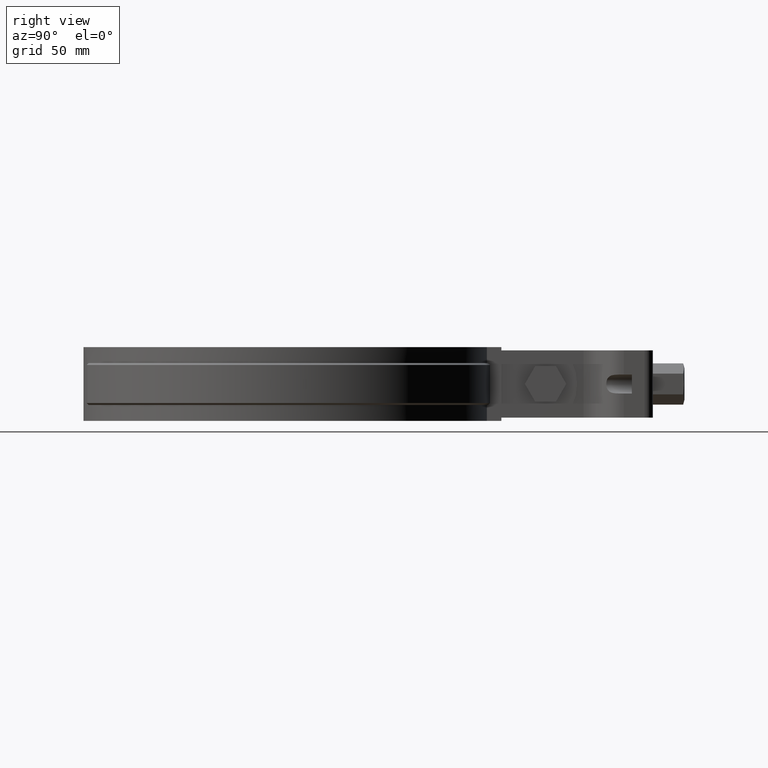
[diagram: clean part render]
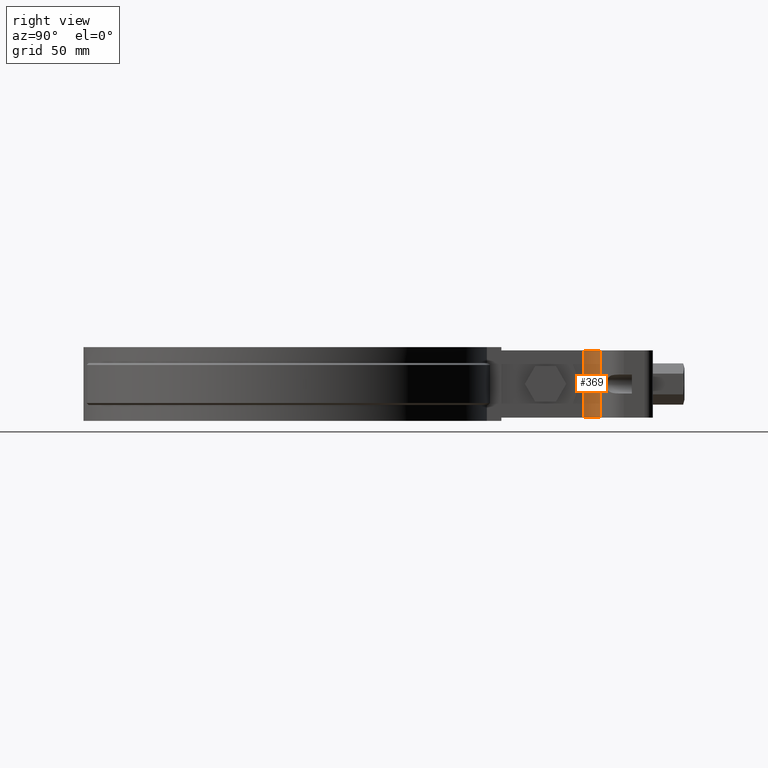
[diagram: same view with one face highlighted and labeled with its STEP entity id]
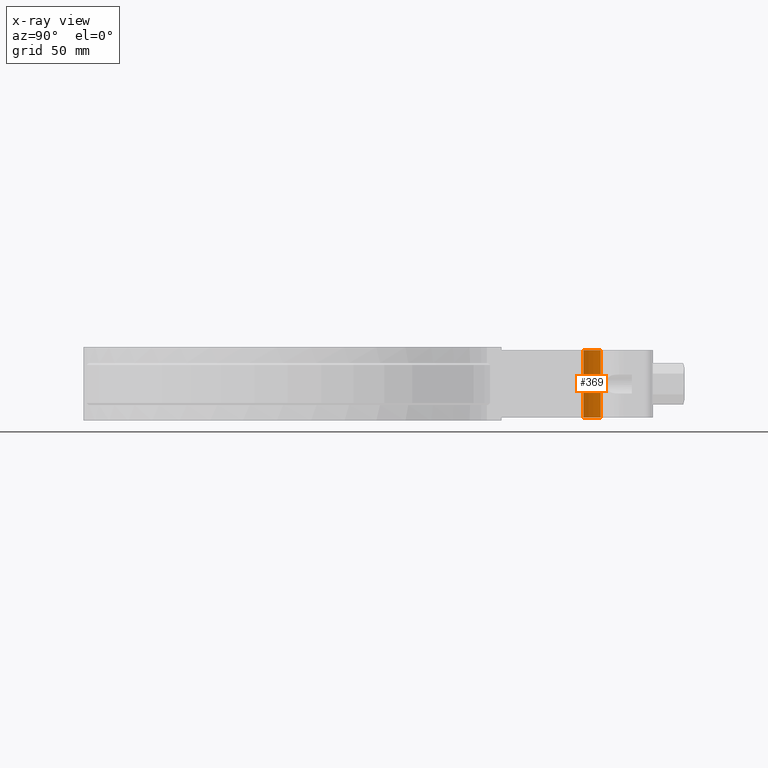
[diagram: x-ray of the same camera — body ghosted, the highlighted face saturated]
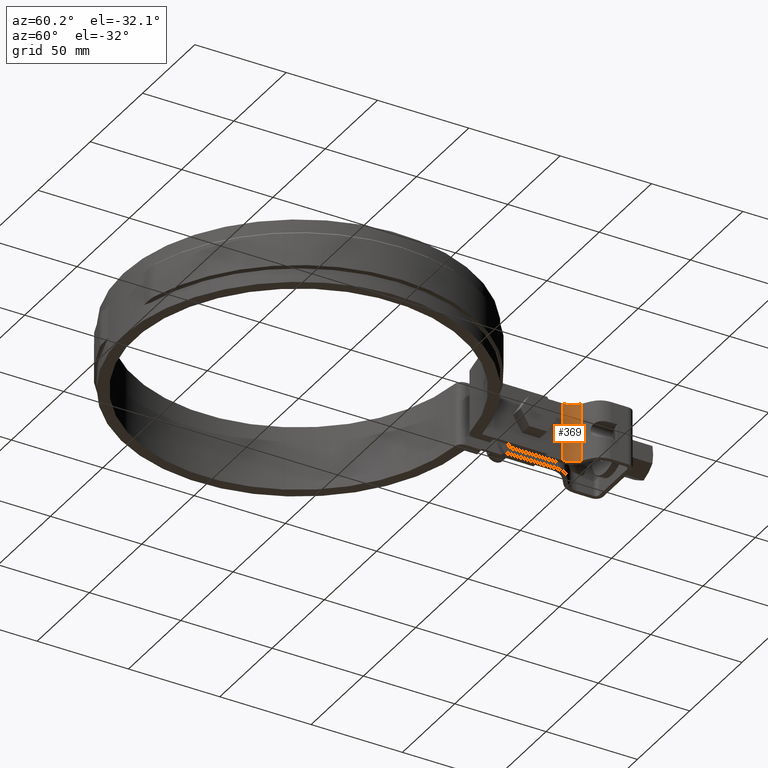
[diagram: same view with one face highlighted and labeled with its STEP entity id]
A machine part, right view. The second image highlights one B-rep face of the part: STEP entity #369.
The next image is the same camera in x-ray: the body ghosted, the highlighted face saturated — about 0% of this face is hidden behind the body in this view.
A second angle (auxiliary view) of the same face is appended — the face is thin or edge-on in the first view.
In plain terms, the highlighted cylindrical surface (edge-blend (fillet) strip) has radius 10 mm, axis along (0, -0, -1).
Its self-contained STEP definition (entity closure, byte-faithful):
#369 = ADVANCED_FACE( '', ( #609 ), #610, .F. );
#609 = FACE_OUTER_BOUND( '', #1371, .T. );
#610 = CYLINDRICAL_SURFACE( '', #1372, 9.99999999999544 );
#1371 = EDGE_LOOP( '', ( #3259, #3260, #3261, #3262 ) );
#1372 = AXIS2_PLACEMENT_3D( '', #3263, #3264, #3265 );
#3259 = ORIENTED_EDGE( '', *, *, #5124, .F. );
#3260 = ORIENTED_EDGE( '', *, *, #5153, .F. );
#3261 = ORIENTED_EDGE( '', *, *, #5140, .T. );
#3262 = ORIENTED_EDGE( '', *, *, #5158, .T. );
#3263 = CARTESIAN_POINT( '', ( 14.9999999999997, 141.540080726866, -31.9999999999823 ) );
#3264 = DIRECTION( '', ( 9.11521279052786E-016, -1.75137682134619E-013, -1.00000000000000 ) );
#3265 = DIRECTION( '', ( -3.03451482752472E-016, 1.00000000000000, -1.75137682134619E-013 ) );
#5124 = EDGE_CURVE( '', #5706, #5708, #5709, .T. );
#5140 = EDGE_CURVE( '', #5737, #5735, #5738, .T. );
#5153 = EDGE_CURVE( '', #5737, #5706, #5757, .T. );
#5158 = EDGE_CURVE( '', #5735, #5708, #5763, .T. );
#5706 = VERTEX_POINT( '', #7744 );
#5708 = VERTEX_POINT( '', #7747 );
#5709 = CIRCLE( '', #7748, 9.99999999999981 );
#5735 = VERTEX_POINT( '', #7783 );
#5737 = VERTEX_POINT( '', #7786 );
#5738 = CIRCLE( '', #7787, 9.99999999999981 );
#5757 = LINE( '', #7814, #7815 );
#5763 = LINE( '', #7821, #7822 );
#7744 = CARTESIAN_POINT( '', ( 4.99999999999989, 141.540080726872, 3.76781938982048E-012 ) );
#7747 = CARTESIAN_POINT( '', ( 9.26423563648934, 149.731601169758, 2.33493779866407E-012 ) );
#7748 = AXIS2_PLACEMENT_3D( '', #9784, #9785, #9786 );
#7783 = CARTESIAN_POINT( '', ( 9.26423563648937, 149.731601169752, -31.9999999999837 ) );
#7786 = CARTESIAN_POINT( '', ( 4.99999999999991, 141.540080726866, -31.9999999999823 ) );
#7787 = AXIS2_PLACEMENT_3D( '', #9812, #9813, #9814 );
#7814 = CARTESIAN_POINT( '', ( 4.99999999999991, 141.540080726866, -31.9999999999823 ) );
#7815 = VECTOR( '', #9835, 999.999999999867 );
#7821 = CARTESIAN_POINT( '', ( 9.26423563648937, 149.731601169752, -31.9999999999837 ) );
#7822 = VECTOR( '', #9848, 999.999999999867 );
#9784 = CARTESIAN_POINT( '', ( 14.9999999999997, 141.540080726872, 3.77822773067634E-012 ) );
#9785 = DIRECTION( '', ( 9.11521279052786E-016, -1.75137682134619E-013, -1.00000000000000 ) );
#9786 = DIRECTION( '', ( -1.00000000000000, -3.03451482752632E-016, -9.11521279052733E-016 ) );
#9812 = CARTESIAN_POINT( '', ( 14.9999999999997, 141.540080726866, -31.9999999999823 ) );
#9813 = DIRECTION( '', ( 9.11521279052786E-016, -1.75137682134619E-013, -1.00000000000000 ) );
#9814 = DIRECTION( '', ( -1.00000000000000, -3.03451482752632E-016, -9.11521279052733E-016 ) );
#9835 = DIRECTION( '', ( -9.11521279052786E-016, 1.75137682134619E-013, 1.00000000000000 ) );
#9848 = DIRECTION( '', ( -9.11521279052786E-016, 1.75137682134619E-013, 1.00000000000000 ) );